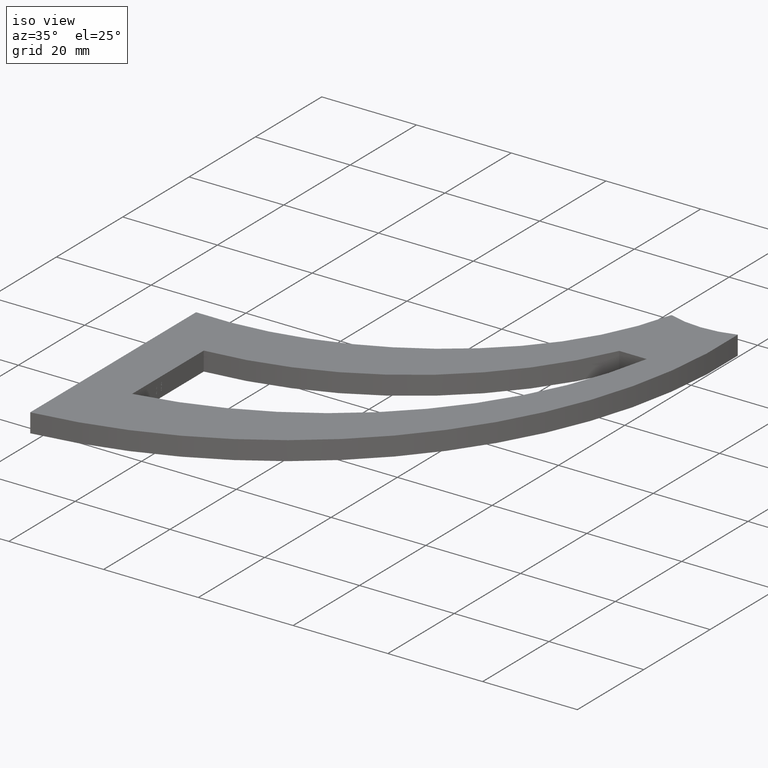
[diagram: clean part render]
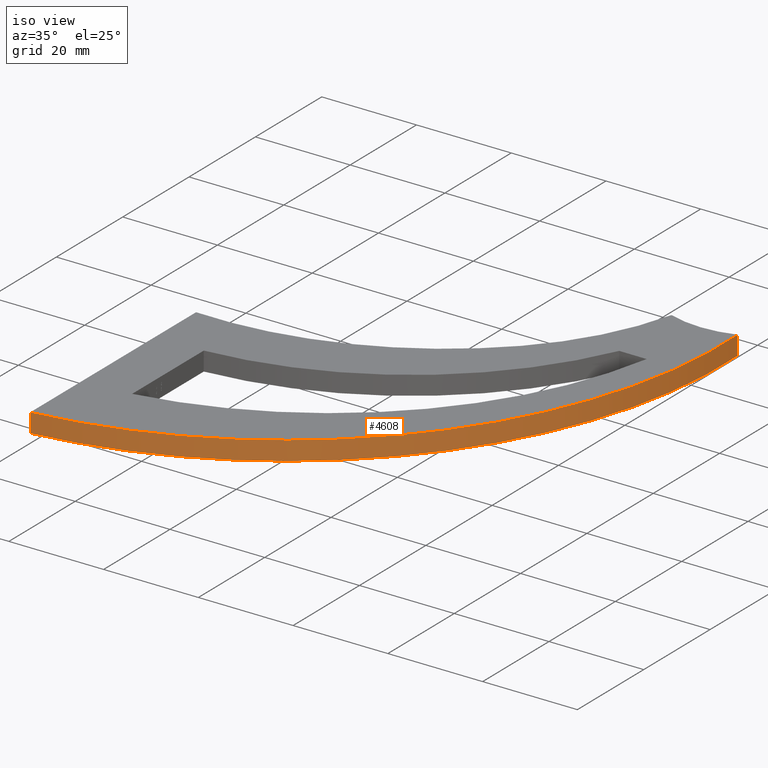
[diagram: same view with one face highlighted and labeled with its STEP entity id]
A machine part, iso view. The second image highlights one B-rep face of the part: STEP entity #4608.
In plain terms, the highlighted cylindrical surface (partial cylindrical patch) has radius 92 mm, axis along (-0, -0, -1).
Its self-contained STEP definition (entity closure, byte-faithful):
#220 = CARTESIAN_POINT ( 'NONE',  ( 2.220446049250313081E-13, -24.99999999999879918, 2.000000000000000000 ) ) ;
#305 = EDGE_CURVE ( 'NONE', #9880, #3038, #10940, .T. ) ;
#479 = ORIENTED_EDGE ( 'NONE', *, *, #11347, .T. ) ;
#515 = ORIENTED_EDGE ( 'NONE', *, *, #3475, .F. ) ;
#876 = CIRCLE ( 'NONE', #5707, 91.99999999999938893 ) ;
#1209 = EDGE_CURVE ( 'NONE', #2931, #3038, #876, .T. ) ;
#1822 = VECTOR ( 'NONE', #2685, 1000.000000000000000 ) ;
#2685 = DIRECTION ( 'NONE',  ( -0.000000000000000000, -0.000000000000000000, -1.000000000000000000 ) ) ;
#2931 = VERTEX_POINT ( 'NONE', #5619 ) ;
#3038 = VERTEX_POINT ( 'NONE', #4803 ) ;
#3285 = CARTESIAN_POINT ( 'NONE',  ( 81.99999999999997158, 71.18900302333739205, 2.000000000000000000 ) ) ;
#3475 = EDGE_CURVE ( 'NONE', #6150, #9880, #8648, .T. ) ;
#3499 = DIRECTION ( 'NONE',  ( -0.000000000000000000, 0.000000000000000000, 1.000000000000000000 ) ) ;
#4502 = LINE ( 'NONE', #7223, #1822 ) ;
#4543 = CARTESIAN_POINT ( 'NONE',  ( -9.878794471127335441, 66.46807869304582539, 2.000000000000000000 ) ) ;
#4608 = ADVANCED_FACE ( 'NONE', ( #8359 ), #5830, .T. ) ;
#4803 = CARTESIAN_POINT ( 'NONE',  ( 81.99999999999997158, 71.18900302333739205, -2.000000000000000000 ) ) ;
#4904 = DIRECTION ( 'NONE',  ( -0.000000000000000000, -0.000000000000000000, -1.000000000000000000 ) ) ;
#5458 = DIRECTION ( 'NONE',  ( 1.000000000000000000, 0.000000000000000000, 0.000000000000000000 ) ) ;
#5619 = CARTESIAN_POINT ( 'NONE',  ( 2.220446049250313081E-13, -24.99999999999879918, -2.000000000000000000 ) ) ;
#5707 = AXIS2_PLACEMENT_3D ( 'NONE', #8928, #3499, #9828 ) ;
#5762 = DIRECTION ( 'NONE',  ( -1.000000000000000000, 0.000000000000000000, 0.000000000000000000 ) ) ;
#5817 = EDGE_LOOP ( 'NONE', ( #9426, #6743, #515, #479 ) ) ;
#5830 = CYLINDRICAL_SURFACE ( 'NONE', #10195, 91.99999999999941735 ) ;
#6150 = VERTEX_POINT ( 'NONE', #220 ) ;
#6389 = CARTESIAN_POINT ( 'NONE',  ( -9.878794471127335441, 66.46807869304582539, 2.000000000000000000 ) ) ;
#6743 = ORIENTED_EDGE ( 'NONE', *, *, #305, .F. ) ;
#7223 = CARTESIAN_POINT ( 'NONE',  ( 2.220446049250313081E-13, -24.99999999999879918, 2.000000000000000000 ) ) ;
#7382 = VECTOR ( 'NONE', #11288, 1000.000000000000000 ) ;
#8359 = FACE_OUTER_BOUND ( 'NONE', #5817, .T. ) ;
#8648 = CIRCLE ( 'NONE', #8891, 91.99999999999938893 ) ;
#8891 = AXIS2_PLACEMENT_3D ( 'NONE', #4543, #9926, #5458 ) ;
#8928 = CARTESIAN_POINT ( 'NONE',  ( -9.878794471127335441, 66.46807869304582539, -2.000000000000000000 ) ) ;
#9426 = ORIENTED_EDGE ( 'NONE', *, *, #1209, .T. ) ;
#9828 = DIRECTION ( 'NONE',  ( 1.000000000000000000, 0.000000000000000000, 0.000000000000000000 ) ) ;
#9880 = VERTEX_POINT ( 'NONE', #3285 ) ;
#9926 = DIRECTION ( 'NONE',  ( -0.000000000000000000, 0.000000000000000000, 1.000000000000000000 ) ) ;
#10195 = AXIS2_PLACEMENT_3D ( 'NONE', #6389, #4904, #5762 ) ;
#10940 = LINE ( 'NONE', #11255, #7382 ) ;
#11255 = CARTESIAN_POINT ( 'NONE',  ( 81.99999999999997158, 71.18900302333739205, 2.000000000000000000 ) ) ;
#11288 = DIRECTION ( 'NONE',  ( -0.000000000000000000, -0.000000000000000000, -1.000000000000000000 ) ) ;
#11347 = EDGE_CURVE ( 'NONE', #6150, #2931, #4502, .T. ) ;